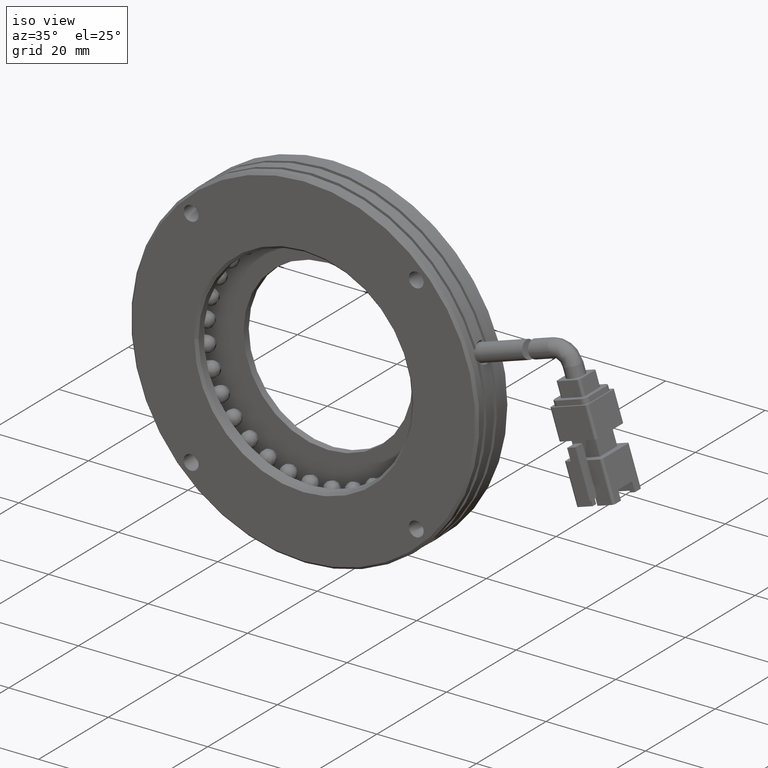
[diagram: clean part render]
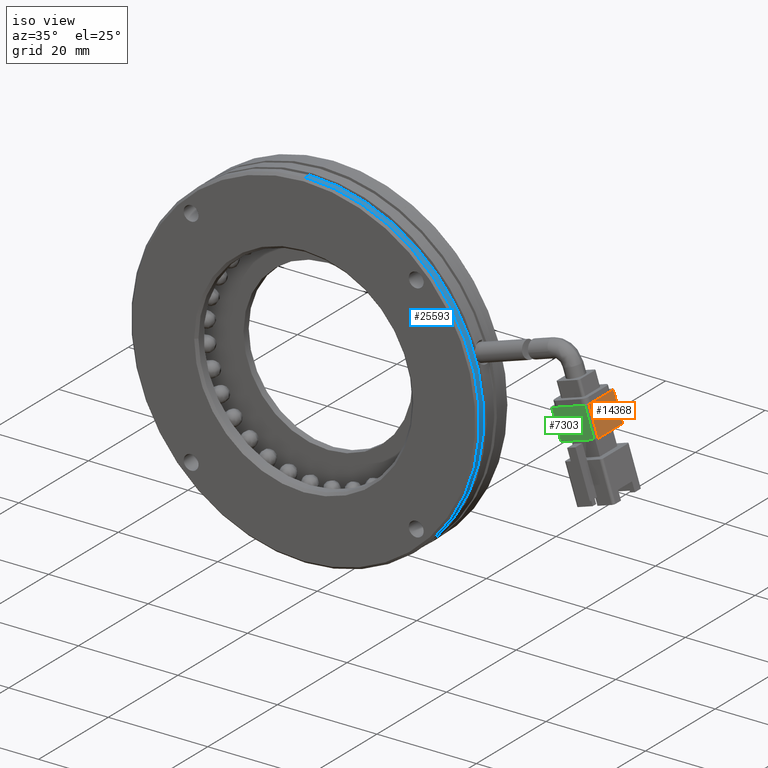
[diagram: same view with three faces highlighted in distinct colors, each labeled with its STEP entity id]
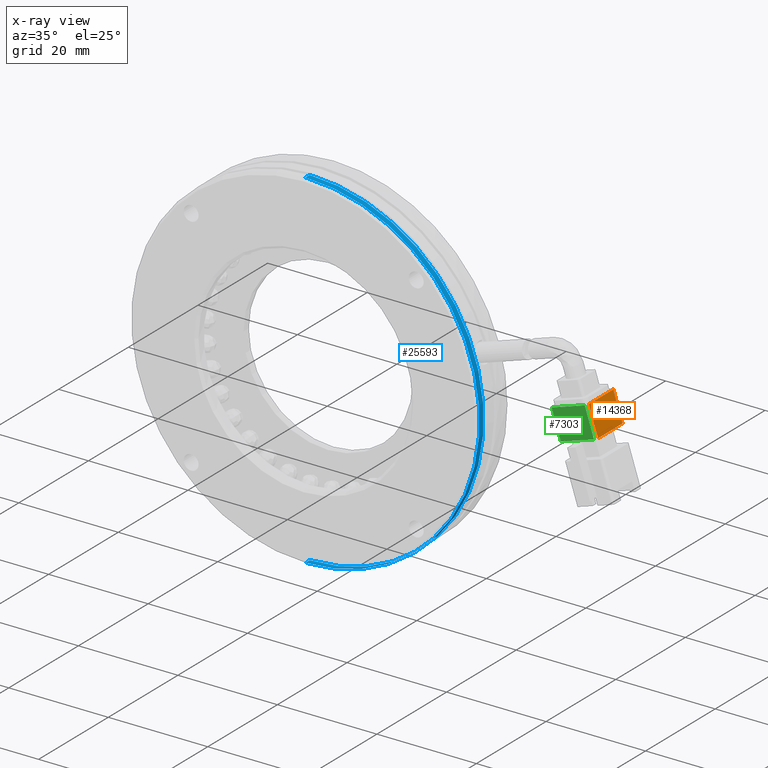
[diagram: x-ray of the same camera — body ghosted, the three highlighted faces saturated]
A machine part, iso view with three faces highlighted in distinct colors.
The next image is the same camera in x-ray (body ghosted, the three faces saturated) — at least one of them is partly hidden behind the body in this view.
Their STEP definitions:

[orange] entity #14368 — the highlighted planar face has unit normal (-0.9511, -0, -0.309).
#2374 = VECTOR ( 'NONE', #4722, 1000.000000000000000 ) ;
#2993 = LINE ( 'NONE', #22051, #26704 ) ;
#4093 = ORIENTED_EDGE ( 'NONE', *, *, #30170, .F. ) ;
#4722 = DIRECTION ( 'NONE',  ( -5.917063340768713900E-017, 1.000000000000000000, 9.691381161735665800E-017 ) ) ;
#4885 = CARTESIAN_POINT ( 'NONE',  ( 51.28208223329370700, 4.760202915404276400, 9.054460032715649500 ) ) ;
#4924 = CARTESIAN_POINT ( 'NONE',  ( 53.13618419954339300, 4.760202915404277300, 3.348120934944726700 ) ) ;
#6119 = EDGE_CURVE ( 'NONE', #7421, #18542, #2993, .T. ) ;
#7421 = VERTEX_POINT ( 'NONE', #25100 ) ;
#7848 = CARTESIAN_POINT ( 'NONE',  ( 51.28208223329370700, 11.76020291540427600, 9.054460032715649500 ) ) ;
#7964 = DIRECTION ( 'NONE',  ( 5.917063340768713900E-017, -1.000000000000000000, -9.691381161735665800E-017 ) ) ;
#11732 = VERTEX_POINT ( 'NONE', #22740 ) ;
#14368 = ADVANCED_FACE ( 'NONE', ( #29896 ), #29592, .F. ) ;
#16679 = ORIENTED_EDGE ( 'NONE', *, *, #26359, .F. ) ;
#17045 = VECTOR ( 'NONE', #20471, 1000.000000000000100 ) ;
#18103 = ORIENTED_EDGE ( 'NONE', *, *, #32947, .F. ) ;
#18542 = VERTEX_POINT ( 'NONE', #4924 ) ;
#20471 = DIRECTION ( 'NONE',  ( -0.3090169943749484500, -1.104552433485933500E-016, 0.9510565162951532000 ) ) ;
#21197 = DIRECTION ( 'NONE',  ( 1.392523512205443700E-016, -1.000000000000000000, -1.854886507106402700E-016 ) ) ;
#22051 = CARTESIAN_POINT ( 'NONE',  ( 53.13618419954338600, 4.760202915404276400, 3.348120934944734300 ) ) ;
#22740 = CARTESIAN_POINT ( 'NONE',  ( 51.28208223329370700, 4.760202915404276400, 9.054460032715649500 ) ) ;
#23244 = CARTESIAN_POINT ( 'NONE',  ( 51.28208223329370700, 4.760202915404276400, 9.054460032715649500 ) ) ;
#25100 = CARTESIAN_POINT ( 'NONE',  ( 53.13618419954340100, 11.76020291540427800, 3.348120934944729000 ) ) ;
#25665 = CARTESIAN_POINT ( 'NONE',  ( 51.28208223329370700, 11.76020291540427600, 9.054460032715653000 ) ) ;
#25951 = VERTEX_POINT ( 'NONE', #25665 ) ;
#26359 = EDGE_CURVE ( 'NONE', #18542, #11732, #33634, .T. ) ;
#26538 = DIRECTION ( 'NONE',  ( -0.9510565162951533100, -2.632660169627703500E-017, -0.3090169943749485100 ) ) ;
#26704 = VECTOR ( 'NONE', #21197, 1000.000000000000000 ) ;
#27408 = LINE ( 'NONE', #7848, #34750 ) ;
#29592 = PLANE ( 'NONE',  #38064 ) ;
#29896 = FACE_OUTER_BOUND ( 'NONE', #32817, .T. ) ;
#30170 = EDGE_CURVE ( 'NONE', #25951, #7421, #27408, .T. ) ;
#31841 = ORIENTED_EDGE ( 'NONE', *, *, #6119, .F. ) ;
#32733 = DIRECTION ( 'NONE',  ( 0.3090169943749484500, 1.104552433485933500E-016, -0.9510565162951532000 ) ) ;
#32817 = EDGE_LOOP ( 'NONE', ( #4093, #18103, #16679, #31841 ) ) ;
#32947 = EDGE_CURVE ( 'NONE', #11732, #25951, #35394, .T. ) ;
#33634 = LINE ( 'NONE', #39198, #17045 ) ;
#34750 = VECTOR ( 'NONE', #32733, 1000.000000000000100 ) ;
#35394 = LINE ( 'NONE', #23244, #2374 ) ;
#38064 = AXIS2_PLACEMENT_3D ( 'NONE', #4885, #26538, #7964 ) ;
#39198 = CARTESIAN_POINT ( 'NONE',  ( 51.28208223329370700, 4.760202915404276400, 9.054460032715649500 ) ) ;

[blue] entity #25593 — the highlighted cylindrical surface (partial cylindrical patch) has radius 35 mm, axis along (-0, -1, -0).
#1416 = CARTESIAN_POINT ( 'NONE',  ( -5.709292144904565300, 5.960202915404264200, 0.0000000000000000000 ) ) ;
#1557 = LINE ( 'NONE', #28413, #34583 ) ;
#3461 = VERTEX_POINT ( 'NONE', #24831 ) ;
#4529 = DIRECTION ( 'NONE',  ( 0.0000000000000000000, 0.0000000000000000000, -1.000000000000000000 ) ) ;
#4555 = VERTEX_POINT ( 'NONE', #6434 ) ;
#6063 = EDGE_CURVE ( 'NONE', #3461, #12677, #1557, .T. ) ;
#6434 = CARTESIAN_POINT ( 'NONE',  ( -5.709292144904565300, 4.760202915404216000, -34.99999999999999300 ) ) ;
#6645 = CIRCLE ( 'NONE', #10707, 34.99999999999999300 ) ;
#8457 = CARTESIAN_POINT ( 'NONE',  ( -5.709292144904565300, -49.82318178258231000, 0.0000000000000000000 ) ) ;
#10707 = AXIS2_PLACEMENT_3D ( 'NONE', #12141, #33961, #15301 ) ;
#11141 = EDGE_CURVE ( 'NONE', #34959, #4555, #30538, .T. ) ;
#11337 = CYLINDRICAL_SURFACE ( 'NONE', #19261, 34.99999999999999300 ) ;
#11469 = EDGE_CURVE ( 'NONE', #4555, #12677, #6645, .T. ) ;
#12015 = AXIS2_PLACEMENT_3D ( 'NONE', #1416, #23080, #4529 ) ;
#12141 = CARTESIAN_POINT ( 'NONE',  ( -5.709292144904565300, 4.760202915404216000, 0.0000000000000000000 ) ) ;
#12677 = VERTEX_POINT ( 'NONE', #21703 ) ;
#14142 = ORIENTED_EDGE ( 'NONE', *, *, #6063, .T. ) ;
#14294 = FACE_OUTER_BOUND ( 'NONE', #39038, .T. ) ;
#15301 = DIRECTION ( 'NONE',  ( 0.0000000000000000000, 0.0000000000000000000, 1.000000000000000000 ) ) ;
#19261 = AXIS2_PLACEMENT_3D ( 'NONE', #8457, #36332, #30227 ) ;
#21703 = CARTESIAN_POINT ( 'NONE',  ( -5.709292144904560800, 4.760202915404216000, 34.99999999999999300 ) ) ;
#22198 = VECTOR ( 'NONE', #33167, 1000.000000000000000 ) ;
#23080 = DIRECTION ( 'NONE',  ( -0.0000000000000000000, -1.000000000000000000, -0.0000000000000000000 ) ) ;
#23594 = CIRCLE ( 'NONE', #12015, 34.99999999999999300 ) ;
#23938 = CARTESIAN_POINT ( 'NONE',  ( -5.709292144904565300, 5.960202915404264200, -34.99999999999999300 ) ) ;
#24831 = CARTESIAN_POINT ( 'NONE',  ( -5.709292144904560800, 5.960202915404264200, 34.99999999999999300 ) ) ;
#25593 = ADVANCED_FACE ( 'NONE', ( #14294 ), #11337, .T. ) ;
#26872 = CARTESIAN_POINT ( 'NONE',  ( -5.709292144904565300, -49.82318178258231000, -34.99999999999999300 ) ) ;
#28051 = ORIENTED_EDGE ( 'NONE', *, *, #11469, .F. ) ;
#28413 = CARTESIAN_POINT ( 'NONE',  ( -5.709292144904560800, -49.82318178258231000, 34.99999999999999300 ) ) ;
#28551 = DIRECTION ( 'NONE',  ( -0.0000000000000000000, -1.000000000000000000, -0.0000000000000000000 ) ) ;
#28979 = ORIENTED_EDGE ( 'NONE', *, *, #39901, .T. ) ;
#30227 = DIRECTION ( 'NONE',  ( 0.0000000000000000000, 0.0000000000000000000, -1.000000000000000000 ) ) ;
#30538 = LINE ( 'NONE', #26872, #22198 ) ;
#32698 = ORIENTED_EDGE ( 'NONE', *, *, #11141, .F. ) ;
#33167 = DIRECTION ( 'NONE',  ( -0.0000000000000000000, -1.000000000000000000, -0.0000000000000000000 ) ) ;
#33961 = DIRECTION ( 'NONE',  ( -0.0000000000000000000, -1.000000000000000000, -0.0000000000000000000 ) ) ;
#34583 = VECTOR ( 'NONE', #28551, 1000.000000000000000 ) ;
#34959 = VERTEX_POINT ( 'NONE', #23938 ) ;
#36332 = DIRECTION ( 'NONE',  ( -0.0000000000000000000, -1.000000000000000000, -0.0000000000000000000 ) ) ;
#39038 = EDGE_LOOP ( 'NONE', ( #28979, #14142, #28051, #32698 ) ) ;
#39901 = EDGE_CURVE ( 'NONE', #34959, #3461, #23594, .T. ) ;

[green] entity #7303 — the highlighted planar face has unit normal (-0, 1, 0).
#228 = EDGE_CURVE ( 'NONE', #27913, #23233, #17111, .T. ) ;
#282 = CARTESIAN_POINT ( 'NONE',  ( 50.80655397514613700, 4.260202915404277300, 8.899951535528163800 ) ) ;
#708 = EDGE_CURVE ( 'NONE', #33334, #20946, #35513, .T. ) ;
#2429 = DIRECTION ( 'NONE',  ( 0.9510565162951532000, 1.502354214089062300E-016, 0.3090169943749484500 ) ) ;
#2614 = CARTESIAN_POINT ( 'NONE',  ( 50.80655397514613000, 4.260202915404277300, 8.899951535528183300 ) ) ;
#2735 = LINE ( 'NONE', #282, #7063 ) ;
#3377 = DIRECTION ( 'NONE',  ( 0.3090169943749484500, 2.194415329909673200E-016, -0.9510565162951532000 ) ) ;
#7063 = VECTOR ( 'NONE', #3377, 1000.000000000000100 ) ;
#7303 = ADVANCED_FACE ( 'NONE', ( #26491 ), #21413, .F. ) ;
#8860 = VECTOR ( 'NONE', #2429, 1000.000000000000100 ) ;
#9342 = DIRECTION ( 'NONE',  ( -2.106935394751884700E-016, 1.000000000000000000, 1.622760015244233400E-016 ) ) ;
#9575 = CARTESIAN_POINT ( 'NONE',  ( 44.14915836108003300, 4.260202915404276400, 6.736832574903515600 ) ) ;
#10042 = CARTESIAN_POINT ( 'NONE',  ( 50.80655397514613700, 4.260202915404277300, 8.899951535528178000 ) ) ;
#10668 = ORIENTED_EDGE ( 'NONE', *, *, #27194, .F. ) ;
#11032 = AXIS2_PLACEMENT_3D ( 'NONE', #27951, #9342, #31142 ) ;
#12459 = CARTESIAN_POINT ( 'NONE',  ( 52.66065594139582400, 4.260202915404280000, 3.193612437757259700 ) ) ;
#13673 = LINE ( 'NONE', #9575, #21910 ) ;
#13802 = ORIENTED_EDGE ( 'NONE', *, *, #38188, .F. ) ;
#17111 = LINE ( 'NONE', #2614, #8860 ) ;
#18934 = VECTOR ( 'NONE', #33906, 1000.000000000000100 ) ;
#20946 = VERTEX_POINT ( 'NONE', #38857 ) ;
#21413 = PLANE ( 'NONE',  #11032 ) ;
#21910 = VECTOR ( 'NONE', #28172, 1000.000000000000100 ) ;
#22702 = EDGE_LOOP ( 'NONE', ( #13802, #27904, #10668, #24777 ) ) ;
#23233 = VERTEX_POINT ( 'NONE', #10042 ) ;
#24777 = ORIENTED_EDGE ( 'NONE', *, *, #708, .F. ) ;
#26491 = FACE_OUTER_BOUND ( 'NONE', #22702, .T. ) ;
#27194 = EDGE_CURVE ( 'NONE', #20946, #27913, #13673, .T. ) ;
#27904 = ORIENTED_EDGE ( 'NONE', *, *, #228, .F. ) ;
#27913 = VERTEX_POINT ( 'NONE', #36487 ) ;
#27951 = CARTESIAN_POINT ( 'NONE',  ( 50.80655397514613700, 4.260202915404277300, 8.899951535528163800 ) ) ;
#28172 = DIRECTION ( 'NONE',  ( -0.3090169943749484500, -2.194415329909673200E-016, 0.9510565162951532000 ) ) ;
#31142 = DIRECTION ( 'NONE',  ( 0.3090169943749484500, 2.194415329909673200E-016, -0.9510565162951532000 ) ) ;
#33334 = VERTEX_POINT ( 'NONE', #12459 ) ;
#33906 = DIRECTION ( 'NONE',  ( -0.9510565162951532000, -7.511771070445336200E-017, -0.3090169943749484500 ) ) ;
#35513 = LINE ( 'NONE', #40192, #18934 ) ;
#36487 = CARTESIAN_POINT ( 'NONE',  ( 44.14915836108004000, 4.260202915404276400, 6.736832574903539600 ) ) ;
#38188 = EDGE_CURVE ( 'NONE', #23233, #33334, #2735, .T. ) ;
#38857 = CARTESIAN_POINT ( 'NONE',  ( 46.00326032732973400, 4.260202915404280000, 1.030493477132614900 ) ) ;
#40192 = CARTESIAN_POINT ( 'NONE',  ( 46.00326032732972000, 4.260202915404280000, 1.030493477132616600 ) ) ;